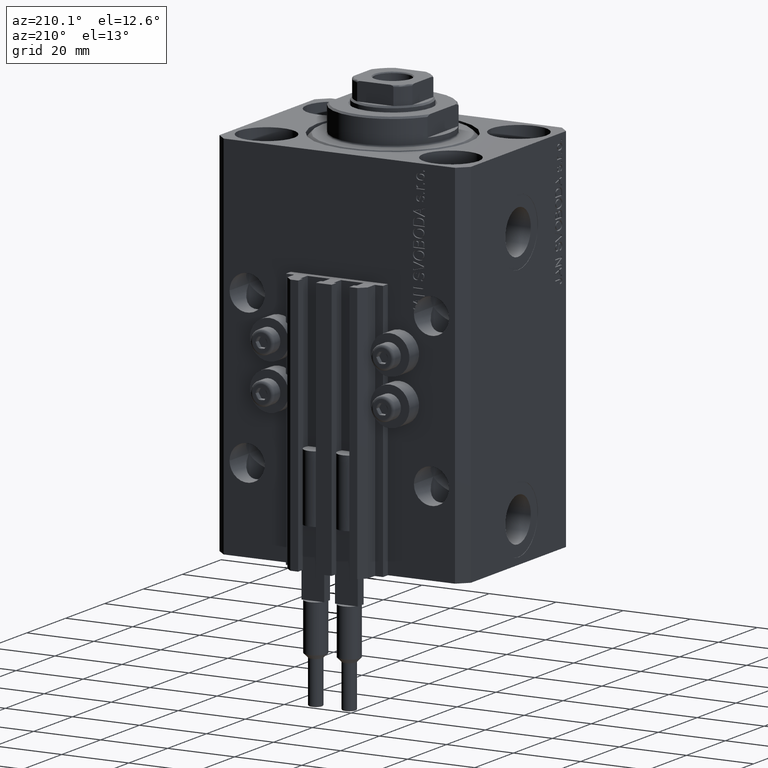
[diagram: clean part render]
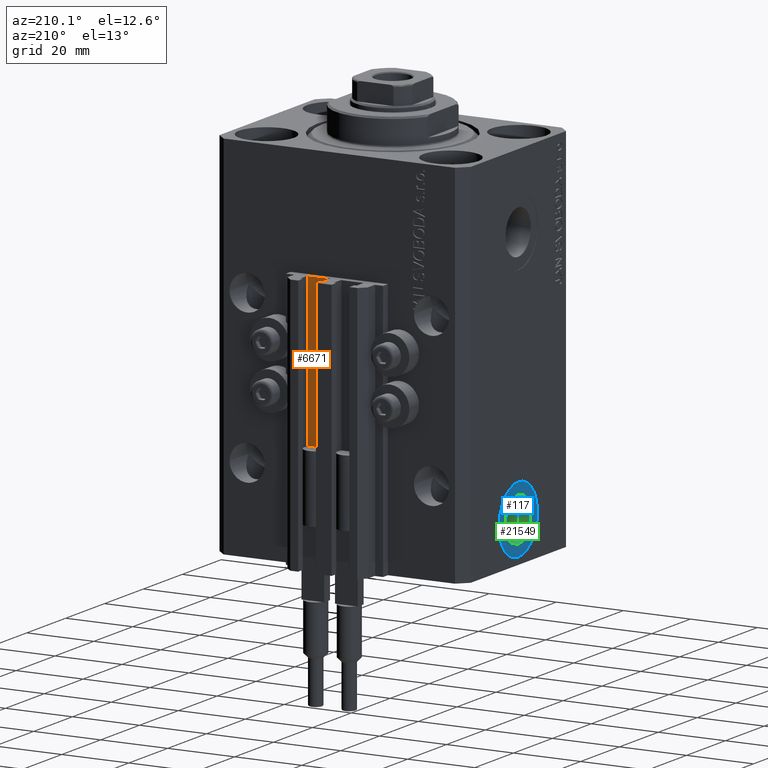
[diagram: same view with three faces highlighted in distinct colors, each labeled with its STEP entity id]
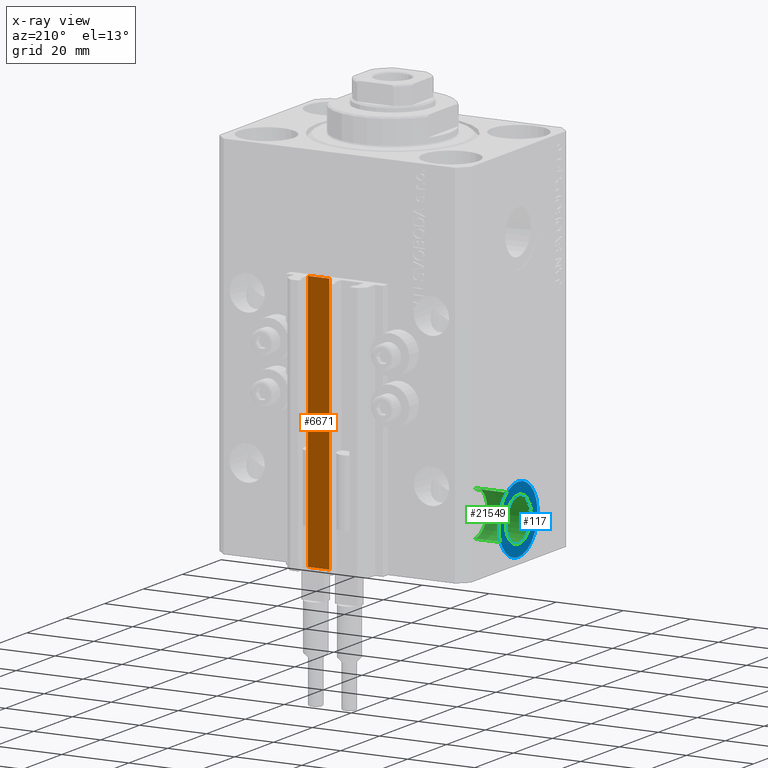
[diagram: x-ray of the same camera — body ghosted, the three highlighted faces saturated]
A machine part, auxiliary view with three faces highlighted in distinct colors.
The next image is the same camera in x-ray (body ghosted, the three faces saturated) — at least one of them is partly hidden behind the body in this view.
Their STEP definitions:

[orange] entity #6671 — the highlighted planar face has unit normal (-0, 1, 0).
#201 = EDGE_CURVE ( 'NONE', #6633, #47302, #14782, .T. ) ;
#478 = ORIENTED_EDGE ( 'NONE', *, *, #29486, .F. ) ;
#1737 = LINE ( 'NONE', #5149, #3326 ) ;
#1746 = DIRECTION ( 'NONE',  ( 0.000000000000000000, 0.000000000000000000, 1.000000000000000000 ) ) ;
#3326 = VECTOR ( 'NONE', #42410, 1000.000000000000000 ) ;
#4611 = CARTESIAN_POINT ( 'NONE',  ( 1.800000000000000933, 29.50000000000000000, -33.00000000000000000 ) ) ;
#5073 = CARTESIAN_POINT ( 'NONE',  ( 8.199999999999999289, 29.50000000000000711, -33.00000000000000000 ) ) ;
#5149 = CARTESIAN_POINT ( 'NONE',  ( 8.199999999999999289, 29.50000000000000711, -33.00000000000000000 ) ) ;
#6633 = VERTEX_POINT ( 'NONE', #39657 ) ;
#6671 = ADVANCED_FACE ( 'NONE', ( #22109 ), #29401, .T. ) ;
#7050 = VECTOR ( 'NONE', #1746, 1000.000000000000000 ) ;
#7501 = DIRECTION ( 'NONE',  ( -1.084202172485504828E-15, 1.000000000000000000, 0.000000000000000000 ) ) ;
#9896 = VERTEX_POINT ( 'NONE', #4611 ) ;
#10431 = DIRECTION ( 'NONE',  ( -1.000000000000000000, -1.084202172485504828E-15, 0.000000000000000000 ) ) ;
#10598 = LINE ( 'NONE', #25426, #35555 ) ;
#11126 = CARTESIAN_POINT ( 'NONE',  ( 8.199999999999999289, 29.50000000000000711, -110.0000000000000000 ) ) ;
#11157 = CARTESIAN_POINT ( 'NONE',  ( 8.199999999999999289, 29.50000000000000711, -110.0000000000000000 ) ) ;
#12238 = LINE ( 'NONE', #46087, #7050 ) ;
#13227 = VERTEX_POINT ( 'NONE', #5073 ) ;
#13603 = VECTOR ( 'NONE', #40826, 1000.000000000000000 ) ;
#14782 = LINE ( 'NONE', #11126, #13603 ) ;
#15395 = AXIS2_PLACEMENT_3D ( 'NONE', #11157, #7501, #10431 ) ;
#17139 = CARTESIAN_POINT ( 'NONE',  ( 1.800000000000000933, 29.50000000000000000, -110.0000000000000000 ) ) ;
#21917 = EDGE_CURVE ( 'NONE', #47302, #9896, #10598, .T. ) ;
#22109 = FACE_OUTER_BOUND ( 'NONE', #28211, .T. ) ;
#25426 = CARTESIAN_POINT ( 'NONE',  ( 1.800000000000000933, 29.50000000000000000, -110.0000000000000000 ) ) ;
#28211 = EDGE_LOOP ( 'NONE', ( #43427, #478, #40170, #29812 ) ) ;
#29401 = PLANE ( 'NONE',  #15395 ) ;
#29486 = EDGE_CURVE ( 'NONE', #6633, #13227, #12238, .T. ) ;
#29812 = ORIENTED_EDGE ( 'NONE', *, *, #21917, .T. ) ;
#34849 = EDGE_CURVE ( 'NONE', #13227, #9896, #1737, .T. ) ;
#35555 = VECTOR ( 'NONE', #40294, 1000.000000000000000 ) ;
#39657 = CARTESIAN_POINT ( 'NONE',  ( 8.199999999999999289, 29.50000000000000711, -110.0000000000000000 ) ) ;
#40170 = ORIENTED_EDGE ( 'NONE', *, *, #201, .T. ) ;
#40294 = DIRECTION ( 'NONE',  ( 0.000000000000000000, 0.000000000000000000, 1.000000000000000000 ) ) ;
#40826 = DIRECTION ( 'NONE',  ( -1.000000000000000000, -1.084202172485504828E-15, 0.000000000000000000 ) ) ;
#42410 = DIRECTION ( 'NONE',  ( -1.000000000000000000, -1.084202172485504828E-15, 0.000000000000000000 ) ) ;
#43427 = ORIENTED_EDGE ( 'NONE', *, *, #34849, .F. ) ;
#46087 = CARTESIAN_POINT ( 'NONE',  ( 8.199999999999999289, 29.50000000000000711, -110.0000000000000000 ) ) ;
#47302 = VERTEX_POINT ( 'NONE', #17139 ) ;

[blue] entity #117 — the highlighted planar face has unit normal (-1, 0, 0).
#117 = ADVANCED_FACE ( 'NONE', ( #18186, #156 ), #22564, .T. ) ;
#156 = FACE_OUTER_BOUND ( 'NONE', #34973, .T. ) ;
#2574 = DIRECTION ( 'NONE',  ( 0.000000000000000000, 0.000000000000000000, 1.000000000000000000 ) ) ;
#3636 = VERTEX_POINT ( 'NONE', #11590 ) ;
#5032 = CARTESIAN_POINT ( 'NONE',  ( -37.39999999999999147, -1.200153863164406187E-14, -98.00000000000000000 ) ) ;
#7871 = CARTESIAN_POINT ( 'NONE',  ( -37.39999999999999147, -1.200153863164406187E-14, -88.00000000000001421 ) ) ;
#8748 = VERTEX_POINT ( 'NONE', #36272 ) ;
#8948 = AXIS2_PLACEMENT_3D ( 'NONE', #5032, #45469, #24002 ) ;
#10479 = CARTESIAN_POINT ( 'NONE',  ( -37.39999999999999147, -1.077689183249671039E-14, -108.0000000000000000 ) ) ;
#10493 = DIRECTION ( 'NONE',  ( -1.000000000000000000, 0.000000000000000000, 0.000000000000000000 ) ) ;
#11590 = CARTESIAN_POINT ( 'NONE',  ( -37.39999999999999147, -1.119572103780510441E-14, -104.5800000000000125 ) ) ;
#12846 = CIRCLE ( 'NONE', #18257, 9.999999999999994671 ) ;
#16044 = ORIENTED_EDGE ( 'NONE', *, *, #26334, .F. ) ;
#17836 = EDGE_LOOP ( 'NONE', ( #34245, #16044 ) ) ;
#18186 = FACE_BOUND ( 'NONE', #17836, .T. ) ;
#18257 = AXIS2_PLACEMENT_3D ( 'NONE', #39584, #35211, #2574 ) ;
#20123 = AXIS2_PLACEMENT_3D ( 'NONE', #28954, #25774, #21899 ) ;
#20620 = CIRCLE ( 'NONE', #8948, 6.580000000000002736 ) ;
#21899 = DIRECTION ( 'NONE',  ( 0.000000000000000000, 0.000000000000000000, 1.000000000000000000 ) ) ;
#22564 = PLANE ( 'NONE',  #37715 ) ;
#22646 = ORIENTED_EDGE ( 'NONE', *, *, #24855, .T. ) ;
#23165 = ORIENTED_EDGE ( 'NONE', *, *, #40122, .T. ) ;
#24002 = DIRECTION ( 'NONE',  ( 0.000000000000000000, 0.000000000000000000, 1.000000000000000000 ) ) ;
#24855 = EDGE_CURVE ( 'NONE', #36634, #37275, #34094, .T. ) ;
#25462 = CARTESIAN_POINT ( 'NONE',  ( -37.39999999999999147, -1.200153863164406187E-14, -98.00000000000000000 ) ) ;
#25774 = DIRECTION ( 'NONE',  ( -1.000000000000000000, 0.000000000000000000, 0.000000000000000000 ) ) ;
#26334 = EDGE_CURVE ( 'NONE', #3636, #8748, #45827, .T. ) ;
#28954 = CARTESIAN_POINT ( 'NONE',  ( -37.39999999999999147, -1.200153863164406187E-14, -98.00000000000000000 ) ) ;
#28993 = CARTESIAN_POINT ( 'NONE',  ( -37.39999999999999147, -1.200153863164406187E-14, -98.00000000000000000 ) ) ;
#30096 = DIRECTION ( 'NONE',  ( -1.000000000000000000, 0.000000000000000000, 0.000000000000000000 ) ) ;
#33358 = AXIS2_PLACEMENT_3D ( 'NONE', #28993, #10493, #43862 ) ;
#34094 = CIRCLE ( 'NONE', #20123, 9.999999999999994671 ) ;
#34245 = ORIENTED_EDGE ( 'NONE', *, *, #39871, .F. ) ;
#34973 = EDGE_LOOP ( 'NONE', ( #23165, #22646 ) ) ;
#35211 = DIRECTION ( 'NONE',  ( -1.000000000000000000, 0.000000000000000000, 0.000000000000000000 ) ) ;
#36272 = CARTESIAN_POINT ( 'NONE',  ( -37.39999999999999147, -1.200153863164406187E-14, -91.42000000000000171 ) ) ;
#36634 = VERTEX_POINT ( 'NONE', #10479 ) ;
#37275 = VERTEX_POINT ( 'NONE', #7871 ) ;
#37715 = AXIS2_PLACEMENT_3D ( 'NONE', #25462, #30096, #44487 ) ;
#39584 = CARTESIAN_POINT ( 'NONE',  ( -37.39999999999999147, -1.200153863164406187E-14, -98.00000000000000000 ) ) ;
#39871 = EDGE_CURVE ( 'NONE', #8748, #3636, #20620, .T. ) ;
#40122 = EDGE_CURVE ( 'NONE', #37275, #36634, #12846, .T. ) ;
#43862 = DIRECTION ( 'NONE',  ( 0.000000000000000000, 0.000000000000000000, 1.000000000000000000 ) ) ;
#44487 = DIRECTION ( 'NONE',  ( 0.000000000000000000, 0.000000000000000000, 1.000000000000000000 ) ) ;
#45469 = DIRECTION ( 'NONE',  ( -1.000000000000000000, 0.000000000000000000, 0.000000000000000000 ) ) ;
#45827 = CIRCLE ( 'NONE', #33358, 6.580000000000002736 ) ;

[green] entity #21549 — the highlighted cylindrical surface (edge-blend (fillet) strip) has radius 6.58 mm, axis along (-1, -0, -0).
#1903 = CARTESIAN_POINT ( 'NONE',  ( -24.39999999999999147, -1.119572103780510441E-14, -104.5800000000000125 ) ) ;
#2047 = EDGE_CURVE ( 'NONE', #19006, #8748, #36694, .T. ) ;
#3636 = VERTEX_POINT ( 'NONE', #11590 ) ;
#5863 = CYLINDRICAL_SURFACE ( 'NONE', #23218, 6.580000000000002736 ) ;
#7522 = AXIS2_PLACEMENT_3D ( 'NONE', #45705, #27893, #38384 ) ;
#7778 = VECTOR ( 'NONE', #23414, 1000.000000000000000 ) ;
#8748 = VERTEX_POINT ( 'NONE', #36272 ) ;
#10493 = DIRECTION ( 'NONE',  ( -1.000000000000000000, 0.000000000000000000, 0.000000000000000000 ) ) ;
#11590 = CARTESIAN_POINT ( 'NONE',  ( -37.39999999999999147, -1.119572103780510441E-14, -104.5800000000000125 ) ) ;
#14456 = VECTOR ( 'NONE', #40596, 1000.000000000000000 ) ;
#17033 = EDGE_CURVE ( 'NONE', #46668, #19006, #28502, .T. ) ;
#17561 = DIRECTION ( 'NONE',  ( 0.000000000000000000, 0.000000000000000000, 1.000000000000000000 ) ) ;
#18201 = ORIENTED_EDGE ( 'NONE', *, *, #17033, .F. ) ;
#19006 = VERTEX_POINT ( 'NONE', #28630 ) ;
#19654 = ORIENTED_EDGE ( 'NONE', *, *, #2047, .F. ) ;
#21549 = ADVANCED_FACE ( 'NONE', ( #29212 ), #5863, .F. ) ;
#23218 = AXIS2_PLACEMENT_3D ( 'NONE', #44084, #24848, #17561 ) ;
#23414 = DIRECTION ( 'NONE',  ( -1.000000000000000000, -0.000000000000000000, -0.000000000000000000 ) ) ;
#24848 = DIRECTION ( 'NONE',  ( -1.000000000000000000, -0.000000000000000000, -0.000000000000000000 ) ) ;
#25434 = ORIENTED_EDGE ( 'NONE', *, *, #26334, .T. ) ;
#26334 = EDGE_CURVE ( 'NONE', #3636, #8748, #45827, .T. ) ;
#27064 = LINE ( 'NONE', #41936, #7778 ) ;
#27893 = DIRECTION ( 'NONE',  ( -1.000000000000000000, 0.000000000000000000, 0.000000000000000000 ) ) ;
#28356 = EDGE_LOOP ( 'NONE', ( #18201, #44074, #25434, #19654 ) ) ;
#28502 = CIRCLE ( 'NONE', #7522, 6.580000000000002736 ) ;
#28630 = CARTESIAN_POINT ( 'NONE',  ( -24.39999999999999147, -1.200153863164406187E-14, -91.42000000000000171 ) ) ;
#28993 = CARTESIAN_POINT ( 'NONE',  ( -37.39999999999999147, -1.200153863164406187E-14, -98.00000000000000000 ) ) ;
#29212 = FACE_OUTER_BOUND ( 'NONE', #28356, .T. ) ;
#33358 = AXIS2_PLACEMENT_3D ( 'NONE', #28993, #10493, #43862 ) ;
#36272 = CARTESIAN_POINT ( 'NONE',  ( -37.39999999999999147, -1.200153863164406187E-14, -91.42000000000000171 ) ) ;
#36694 = LINE ( 'NONE', #36933, #14456 ) ;
#36933 = CARTESIAN_POINT ( 'NONE',  ( -24.39999999999999147, -1.200153863164406187E-14, -91.42000000000000171 ) ) ;
#38384 = DIRECTION ( 'NONE',  ( 0.000000000000000000, 0.000000000000000000, 1.000000000000000000 ) ) ;
#40596 = DIRECTION ( 'NONE',  ( -1.000000000000000000, -0.000000000000000000, -0.000000000000000000 ) ) ;
#41471 = EDGE_CURVE ( 'NONE', #46668, #3636, #27064, .T. ) ;
#41936 = CARTESIAN_POINT ( 'NONE',  ( -24.39999999999999147, -1.119572103780510441E-14, -104.5800000000000125 ) ) ;
#43862 = DIRECTION ( 'NONE',  ( 0.000000000000000000, 0.000000000000000000, 1.000000000000000000 ) ) ;
#44074 = ORIENTED_EDGE ( 'NONE', *, *, #41471, .T. ) ;
#44084 = CARTESIAN_POINT ( 'NONE',  ( -24.39999999999999147, -1.200153863164406187E-14, -98.00000000000000000 ) ) ;
#45705 = CARTESIAN_POINT ( 'NONE',  ( -24.39999999999999147, -1.200153863164406187E-14, -98.00000000000000000 ) ) ;
#45827 = CIRCLE ( 'NONE', #33358, 6.580000000000002736 ) ;
#46668 = VERTEX_POINT ( 'NONE', #1903 ) ;